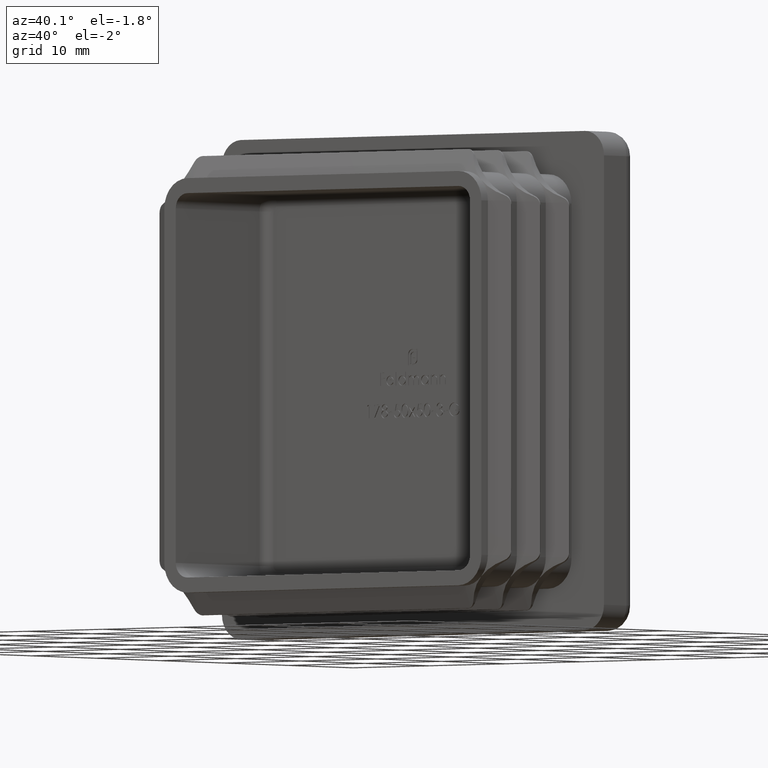
[diagram: clean part render]
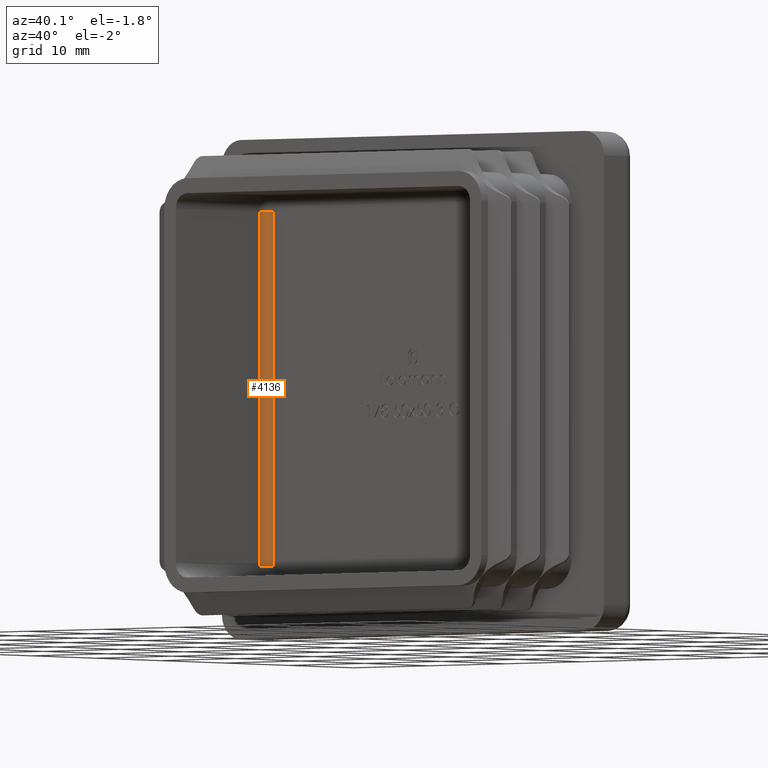
[diagram: same view with one face highlighted and labeled with its STEP entity id]
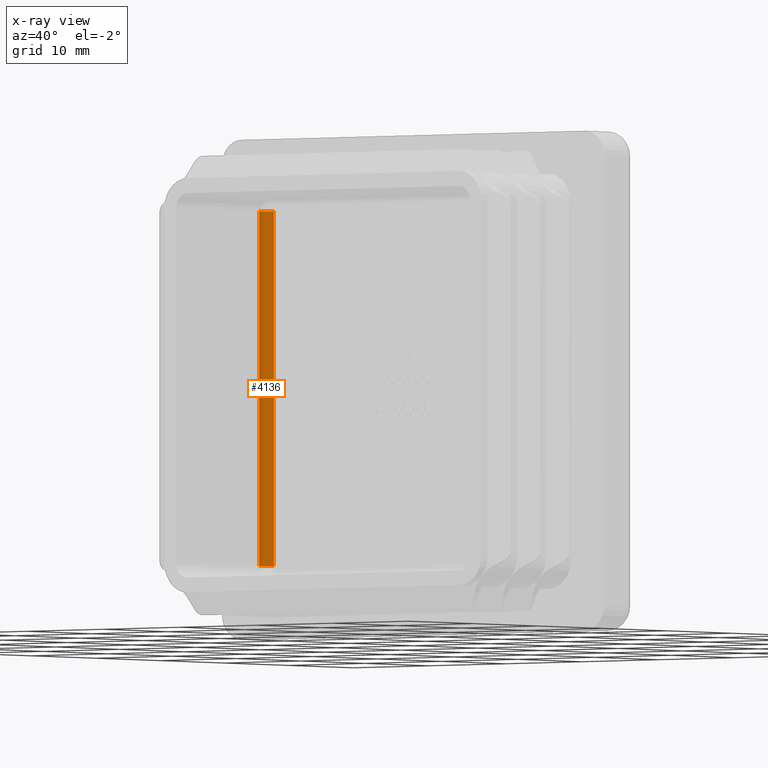
[diagram: x-ray of the same camera — body ghosted, the highlighted face saturated]
A machine part, auxiliary view. The second image highlights one B-rep face of the part: STEP entity #4136.
The next image is the same camera in x-ray: the body ghosted, the highlighted face saturated — about 0% of this face is hidden behind the body in this view.
In plain terms, the highlighted cylindrical surface (edge-blend (fillet) strip) has radius 1 mm, axis along (0, 0, -1).
Its self-contained STEP definition (entity closure, byte-faithful):
#1714 = DIRECTION ( 'NONE',  ( 9.773090005503137866E-17, 0.000000000000000000, -1.000000000000000000 ) ) ;
#2080 = CYLINDRICAL_SURFACE ( 'NONE', #15982, 1.000000000000000888 ) ;
#3649 = VECTOR ( 'NONE', #8610, 1000.000000000000000 ) ;
#3710 = VERTEX_POINT ( 'NONE', #9375 ) ;
#4136 = ADVANCED_FACE ( 'NONE', ( #17040 ), #2080, .F. ) ;
#4662 = EDGE_CURVE ( 'NONE', #19282, #19736, #17318, .T. ) ;
#5687 = CARTESIAN_POINT ( 'NONE',  ( -19.24999999999999645, -0.9999999999999991118, -17.75000000000000355 ) ) ;
#6371 = AXIS2_PLACEMENT_3D ( 'NONE', #7022, #21185, #10553 ) ;
#6679 = EDGE_CURVE ( 'NONE', #19282, #10815, #10567, .T. ) ;
#7022 = CARTESIAN_POINT ( 'NONE',  ( -18.24999999999999645, -0.9999999999999991118, -17.75000000000000355 ) ) ;
#8054 = DIRECTION ( 'NONE',  ( -9.773090005503137866E-17, -0.000000000000000000, 1.000000000000000000 ) ) ;
#8174 = EDGE_CURVE ( 'NONE', #10815, #3710, #14460, .T. ) ;
#8348 = LINE ( 'NONE', #15662, #3649 ) ;
#8610 = DIRECTION ( 'NONE',  ( 9.773090005503137866E-17, 0.000000000000000000, -1.000000000000000000 ) ) ;
#9375 = CARTESIAN_POINT ( 'NONE',  ( -18.25000000000000000, 0.000000000000000000, 17.75000000000000355 ) ) ;
#10553 = DIRECTION ( 'NONE',  ( -1.000000000000000000, 0.000000000000000000, 0.000000000000000000 ) ) ;
#10567 = LINE ( 'NONE', #16884, #20871 ) ;
#10802 = CARTESIAN_POINT ( 'NONE',  ( -19.25000000000000000, -0.9999999999999991118, 17.75000000000000355 ) ) ;
#10815 = VERTEX_POINT ( 'NONE', #10802 ) ;
#11877 = DIRECTION ( 'NONE',  ( 0.000000000000000000, 0.000000000000000000, -1.000000000000000000 ) ) ;
#12992 = ORIENTED_EDGE ( 'NONE', *, *, #20640, .F. ) ;
#13716 = CARTESIAN_POINT ( 'NONE',  ( -18.25000000000000000, -1.000000000000000000, 17.75000000000000355 ) ) ;
#14460 = CIRCLE ( 'NONE', #20969, 1.000000000000000888 ) ;
#14648 = ORIENTED_EDGE ( 'NONE', *, *, #8174, .F. ) ;
#15662 = CARTESIAN_POINT ( 'NONE',  ( -18.24999999999999645, 0.000000000000000000, -1.783588926004322143E-15 ) ) ;
#15982 = AXIS2_PLACEMENT_3D ( 'NONE', #17432, #1714, #19214 ) ;
#16388 = EDGE_LOOP ( 'NONE', ( #21417, #12992, #14648, #18799 ) ) ;
#16884 = CARTESIAN_POINT ( 'NONE',  ( -19.25000000000000000, -0.9999999999999991118, 17.75000000000000355 ) ) ;
#17040 = FACE_OUTER_BOUND ( 'NONE', #16388, .T. ) ;
#17318 = CIRCLE ( 'NONE', #6371, 1.000000000000000888 ) ;
#17432 = CARTESIAN_POINT ( 'NONE',  ( -18.24999999999999645, -1.000000000000000000, -1.783588926004322143E-15 ) ) ;
#17952 = CARTESIAN_POINT ( 'NONE',  ( -18.24999999999999645, 0.000000000000000000, -17.75000000000000355 ) ) ;
#18799 = ORIENTED_EDGE ( 'NONE', *, *, #6679, .F. ) ;
#19005 = DIRECTION ( 'NONE',  ( -1.000000000000000000, 0.000000000000000000, 0.000000000000000000 ) ) ;
#19214 = DIRECTION ( 'NONE',  ( -1.000000000000000000, 0.000000000000000000, -9.773090005503116912E-17 ) ) ;
#19282 = VERTEX_POINT ( 'NONE', #5687 ) ;
#19736 = VERTEX_POINT ( 'NONE', #17952 ) ;
#20640 = EDGE_CURVE ( 'NONE', #3710, #19736, #8348, .T. ) ;
#20871 = VECTOR ( 'NONE', #8054, 1000.000000000000000 ) ;
#20969 = AXIS2_PLACEMENT_3D ( 'NONE', #13716, #11877, #19005 ) ;
#21185 = DIRECTION ( 'NONE',  ( 0.000000000000000000, 0.000000000000000000, -1.000000000000000000 ) ) ;
#21417 = ORIENTED_EDGE ( 'NONE', *, *, #4662, .T. ) ;